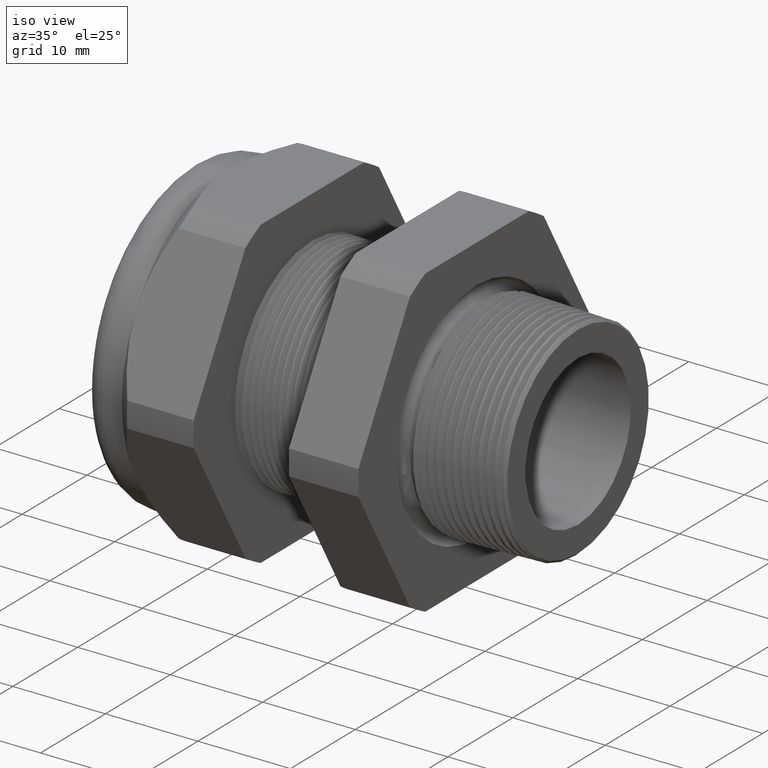
[diagram: clean part render]
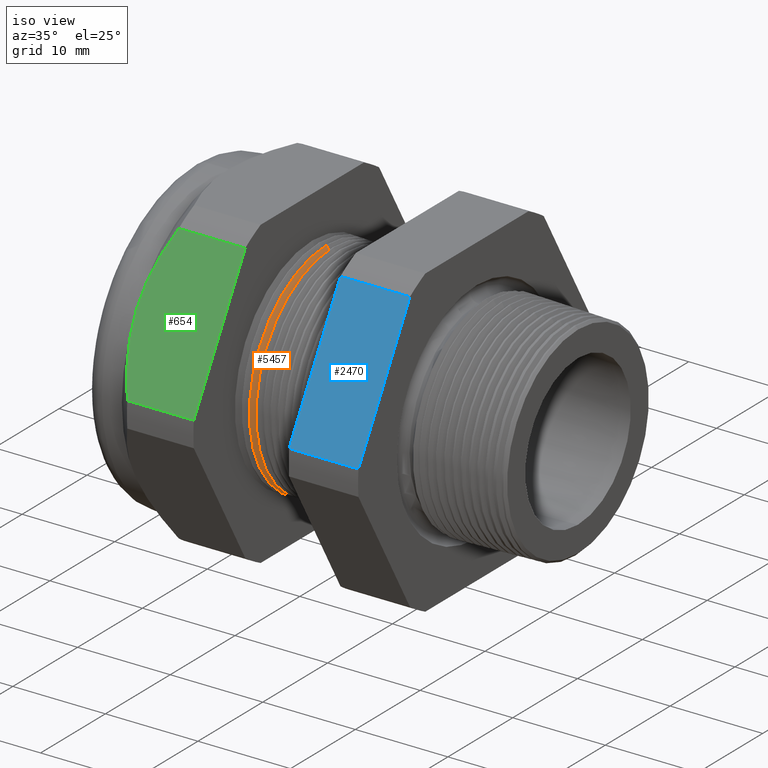
[diagram: same view with three faces highlighted in distinct colors, each labeled with its STEP entity id]
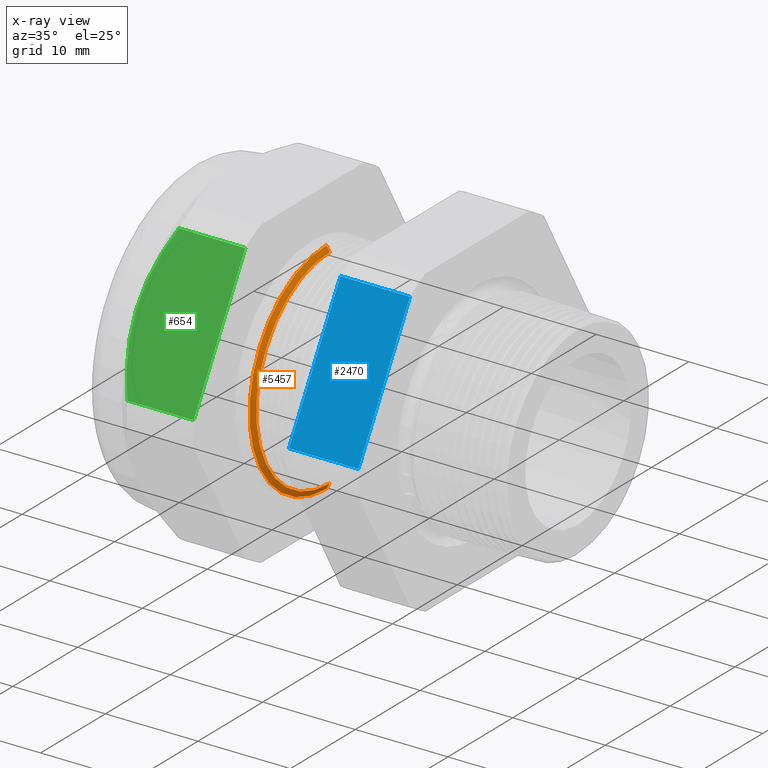
[diagram: x-ray of the same camera — body ghosted, the three highlighted faces saturated]
A machine part, iso view with three faces highlighted in distinct colors.
The next image is the same camera in x-ray (body ghosted, the three faces saturated) — at least one of them is partly hidden behind the body in this view.
Their STEP definitions:

[orange] entity #5457 — the highlighted conical surface has half-angle 61.5 deg.
#225 = VERTEX_POINT ( 'NONE', #3040 ) ;
#230 = VERTEX_POINT ( 'NONE', #3034 ) ;
#333 = EDGE_CURVE ( 'NONE', #225, #822, #3221, .T. ) ;
#522 = EDGE_CURVE ( 'NONE', #822, #819, #3592, .T. ) ;
#818 = EDGE_CURVE ( 'NONE', #230, #819, #4280, .T. ) ;
#819 = VERTEX_POINT ( 'NONE', #4275 ) ;
#822 = VERTEX_POINT ( 'NONE', #4269 ) ;
#1986 = CIRCLE ( 'NONE', #2049, 0.4446307351718083400 ) ;
#2046 = DIRECTION ( 'NONE',  ( 0.0000000000000000000, 0.0000000000000000000, -1.000000000000000000 ) ) ;
#2047 = DIRECTION ( 'NONE',  ( 1.000000000000000000, 0.0000000000000000000, 0.0000000000000000000 ) ) ;
#2048 = CARTESIAN_POINT ( 'NONE',  ( -0.9365405736958171100, 0.0000000000000000000, 0.0000000000000000000 ) ) ;
#2049 = AXIS2_PLACEMENT_3D ( 'NONE', #2048, #2047, #2046 ) ;
#2063 = DIRECTION ( 'NONE',  ( 0.0000000000000000000, 0.0000000000000000000, 1.000000000000000000 ) ) ;
#2064 = DIRECTION ( 'NONE',  ( -1.000000000000000000, 0.0000000000000000000, 0.0000000000000000000 ) ) ;
#2065 = CARTESIAN_POINT ( 'NONE',  ( -0.9503149606299211600, 0.0000000000000000000, 0.0000000000000000000 ) ) ;
#2066 = AXIS2_PLACEMENT_3D ( 'NONE', #2065, #2064, #2063 ) ;
#2068 = CONICAL_SURFACE ( 'NONE', #2066, 0.4699999999999999700, 1.073377489976499400 ) ;
#2069 = FACE_OUTER_BOUND ( 'NONE', #5446, .T. ) ;
#3034 = CARTESIAN_POINT ( 'NONE',  ( -0.9365405736958171100, 5.590738703805261400E-017, -0.4446307351718083400 ) ) ;
#3040 = CARTESIAN_POINT ( 'NONE',  ( -0.9365405736958171100, 0.0000000000000000000, 0.4446307351718083400 ) ) ;
#3218 = DIRECTION ( 'NONE',  ( -0.4771587602596201200, 0.0000000000000000000, 0.8788171126619589400 ) ) ;
#3219 = VECTOR ( 'NONE', #3218, 39.37007874015748100 ) ;
#3220 = CARTESIAN_POINT ( 'NONE',  ( -0.9503149606299211600, 0.0000000000000000000, 0.4699999999999999700 ) ) ;
#3221 = LINE ( 'NONE', #3220, #3219 ) ;
#3589 = DIRECTION ( 'NONE',  ( 0.0000000000000000000, 0.0000000000000000000, 1.000000000000000000 ) ) ;
#3590 = DIRECTION ( 'NONE',  ( 1.000000000000000000, 0.0000000000000000000, 0.0000000000000000000 ) ) ;
#3591 = AXIS2_PLACEMENT_3D ( 'NONE', #3597, #3590, #3589 ) ;
#3592 = CIRCLE ( 'NONE', #3591, 0.4684061841583611600 ) ;
#3597 = CARTESIAN_POINT ( 'NONE',  ( -0.9494495892345292700, 0.0000000000000000000, 0.0000000000000000000 ) ) ;
#4269 = CARTESIAN_POINT ( 'NONE',  ( -0.9494495892345292700, 0.0000000000000000000, 0.4684061841583611600 ) ) ;
#4275 = CARTESIAN_POINT ( 'NONE',  ( -0.9494495892345292700, 5.736719239259559800E-017, -0.4684061841583611600 ) ) ;
#4276 = DIRECTION ( 'NONE',  ( -0.4771587602596201200, 1.076240564057387000E-016, -0.8788171126619589400 ) ) ;
#4277 = VECTOR ( 'NONE', #4276, 39.37007874015748100 ) ;
#4279 = CARTESIAN_POINT ( 'NONE',  ( -0.9503149606299211600, 5.755839955992559700E-017, -0.4699999999999999700 ) ) ;
#4280 = LINE ( 'NONE', #4279, #4277 ) ;
#5424 = ORIENTED_EDGE ( 'NONE', *, *, #333, .T. ) ;
#5428 = ORIENTED_EDGE ( 'NONE', *, *, #5432, .F. ) ;
#5429 = ORIENTED_EDGE ( 'NONE', *, *, #522, .T. ) ;
#5432 = EDGE_CURVE ( 'NONE', #225, #230, #1986, .T. ) ;
#5446 = EDGE_LOOP ( 'NONE', ( #5459, #5428, #5424, #5429 ) ) ;
#5457 = ADVANCED_FACE ( 'NONE', ( #2069 ), #2068, .T. ) ;
#5459 = ORIENTED_EDGE ( 'NONE', *, *, #818, .F. ) ;

[blue] entity #2470 — the highlighted planar face has unit normal (0, -0.866, 0.5).
#259 = VERTEX_POINT ( 'NONE', #3101 ) ;
#261 = EDGE_CURVE ( 'NONE', #259, #262, #3100, .T. ) ;
#262 = VERTEX_POINT ( 'NONE', #3096 ) ;
#332 = VERTEX_POINT ( 'NONE', #3222 ) ;
#391 = EDGE_CURVE ( 'NONE', #332, #392, #3345, .T. ) ;
#392 = VERTEX_POINT ( 'NONE', #3341 ) ;
#1027 = EDGE_LOOP ( 'NONE', ( #2471, #2468, #2466, #2465 ) ) ;
#2465 = ORIENTED_EDGE ( 'NONE', *, *, #261, .F. ) ;
#2466 = ORIENTED_EDGE ( 'NONE', *, *, #2467, .F. ) ;
#2467 = EDGE_CURVE ( 'NONE', #262, #332, #4863, .T. ) ;
#2468 = ORIENTED_EDGE ( 'NONE', *, *, #391, .F. ) ;
#2470 = ADVANCED_FACE ( 'NONE', ( #4855 ), #4854, .T. ) ;
#2471 = ORIENTED_EDGE ( 'NONE', *, *, #2476, .T. ) ;
#2476 = EDGE_CURVE ( 'NONE', #259, #392, #4912, .T. ) ;
#3096 = CARTESIAN_POINT ( 'NONE',  ( -0.3100000000000000000, -0.7194909755756819800, 0.05380507471562025900 ) ) ;
#3097 = DIRECTION ( 'NONE',  ( 0.0000000000000000000, -0.4999999999999995600, -0.8660254037844388200 ) ) ;
#3098 = VECTOR ( 'NONE', #3097, 39.37007874015748900 ) ;
#3099 = CARTESIAN_POINT ( 'NONE',  ( -0.3100000000000000000, -0.2379165124598858200, 0.8879165124598844500 ) ) ;
#3100 = LINE ( 'NONE', #3099, #3098 ) ;
#3101 = CARTESIAN_POINT ( 'NONE',  ( -0.3100000000000000000, -0.4063420493440885700, 0.5961949252843791200 ) ) ;
#3222 = CARTESIAN_POINT ( 'NONE',  ( -0.6052755905511810800, -0.7194909755756819800, 0.05380507471562025900 ) ) ;
#3341 = CARTESIAN_POINT ( 'NONE',  ( -0.6052755905511810800, -0.4063420493440885700, 0.5961949252843791200 ) ) ;
#3342 = DIRECTION ( 'NONE',  ( 0.0000000000000000000, 0.4999999999999995600, 0.8660254037844388200 ) ) ;
#3343 = VECTOR ( 'NONE', #3342, 39.37007874015748900 ) ;
#3344 = CARTESIAN_POINT ( 'NONE',  ( -0.6052755905511809600, -0.2379165124598858200, 0.8879165124598844500 ) ) ;
#3345 = LINE ( 'NONE', #3344, #3343 ) ;
#4850 = DIRECTION ( 'NONE',  ( 0.0000000000000000000, -0.4999999999999995600, -0.8660254037844388200 ) ) ;
#4851 = DIRECTION ( 'NONE',  ( 0.0000000000000000000, -0.8660254037844389300, 0.4999999999999996100 ) ) ;
#4852 = CARTESIAN_POINT ( 'NONE',  ( 0.1200000000000000900, -0.7194909755756819800, 0.05380507471562023100 ) ) ;
#4853 = AXIS2_PLACEMENT_3D ( 'NONE', #4852, #4851, #4850 ) ;
#4854 = PLANE ( 'NONE',  #4853 ) ;
#4855 = FACE_OUTER_BOUND ( 'NONE', #1027, .T. ) ;
#4857 = DIRECTION ( 'NONE',  ( -1.000000000000000000, 0.0000000000000000000, 0.0000000000000000000 ) ) ;
#4858 = VECTOR ( 'NONE', #4857, 39.37007874015748100 ) ;
#4859 = CARTESIAN_POINT ( 'NONE',  ( 0.1200000000000000900, -0.7194909755756819800, 0.05380507471562025900 ) ) ;
#4863 = LINE ( 'NONE', #4859, #4858 ) ;
#4905 = DIRECTION ( 'NONE',  ( -1.000000000000000000, 0.0000000000000000000, 0.0000000000000000000 ) ) ;
#4906 = VECTOR ( 'NONE', #4905, 39.37007874015748100 ) ;
#4907 = CARTESIAN_POINT ( 'NONE',  ( 0.1200000000000000900, -0.4063420493440885700, 0.5961949252843791200 ) ) ;
#4912 = LINE ( 'NONE', #4907, #4906 ) ;

[green] entity #654 — the highlighted planar face has unit normal (0, -0.866, 0.5).
#654 = ADVANCED_FACE ( 'NONE', ( #3870 ), #3869, .T. ) ;
#655 = EDGE_LOOP ( 'NONE', ( #656, #660, #663, #665, #666 ) ) ;
#656 = ORIENTED_EDGE ( 'NONE', *, *, #657, .T. ) ;
#657 = EDGE_CURVE ( 'NONE', #658, #659, #3868, .T. ) ;
#658 = VERTEX_POINT ( 'NONE', #3924 ) ;
#659 = VERTEX_POINT ( 'NONE', #3923 ) ;
#660 = ORIENTED_EDGE ( 'NONE', *, *, #661, .T. ) ;
#661 = EDGE_CURVE ( 'NONE', #659, #662, #3922, .T. ) ;
#662 = VERTEX_POINT ( 'NONE', #3921 ) ;
#663 = ORIENTED_EDGE ( 'NONE', *, *, #664, .T. ) ;
#664 = EDGE_CURVE ( 'NONE', #662, #676, #3910, .T. ) ;
#665 = ORIENTED_EDGE ( 'NONE', *, *, #674, .F. ) ;
#666 = ORIENTED_EDGE ( 'NONE', *, *, #667, .F. ) ;
#667 = EDGE_CURVE ( 'NONE', #658, #675, #3908, .T. ) ;
#674 = EDGE_CURVE ( 'NONE', #675, #676, #3948, .T. ) ;
#675 = VERTEX_POINT ( 'NONE', #3939 ) ;
#676 = VERTEX_POINT ( 'NONE', #3938 ) ;
#3863 = DIRECTION ( 'NONE',  ( 0.0000000000000000000, -0.4999999999999995600, -0.8660254037844388200 ) ) ;
#3864 = DIRECTION ( 'NONE',  ( 0.0000000000000000000, -0.8660254037844389300, 0.4999999999999996100 ) ) ;
#3865 = CARTESIAN_POINT ( 'NONE',  ( 0.1200000000000000900, -0.7194909755756819800, 0.05380507471562023100 ) ) ;
#3866 = AXIS2_PLACEMENT_3D ( 'NONE', #3865, #3864, #3863 ) ;
#3868 = LINE ( 'NONE', #3928, #3927 ) ;
#3869 = PLANE ( 'NONE',  #3866 ) ;
#3870 = FACE_OUTER_BOUND ( 'NONE', #655, .T. ) ;
#3900 = CARTESIAN_POINT ( 'NONE',  ( -1.293145669291338600, -0.7194909755756819800, 0.05380507471562022400 ) ) ;
#3901 = CARTESIAN_POINT ( 'NONE',  ( -1.314794001287756400, -0.6945519286446000300, 0.09700077109259888600 ) ) ;
#3902 = CARTESIAN_POINT ( 'NONE',  ( -1.332917759362547400, -0.6687756690813084800, 0.1416465622853033100 ) ) ;
#3904 = CARTESIAN_POINT ( 'NONE',  ( -1.357805912917037400, -0.6165592345672921100, 0.2320880798536728600 ) ) ;
#3905 = CARTESIAN_POINT ( 'NONE',  ( -1.364645669291338000, -0.5900081318517965700, 0.2780759387538904700 ) ) ;
#3906 = CARTESIAN_POINT ( 'NONE',  ( -1.364645669291338500, -0.5629165124598853900, 0.3249999999999997300 ) ) ;
#3907 = CARTESIAN_POINT ( 'NONE',  ( -1.010314960629921100, -0.4454165124598855100, 0.5285159698893426800 ) ) ;
#3908 = LINE ( 'NONE', #3907, #3909 ) ;
#3909 = VECTOR ( 'NONE', #3961, 39.37007874015748900 ) ;
#3910 = B_SPLINE_CURVE_WITH_KNOTS ( 'NONE', 3,
 ( #3906, #3905, #3904, #3902, #3901, #3900 ),
 .UNSPECIFIED., .F., .F.,
 ( 4, 2, 4 ),
 ( 0.008163776578903783600, 0.01224274182034620200, 0.01632170706178862100 ),
 .UNSPECIFIED. ) ;
#3911 = CARTESIAN_POINT ( 'NONE',  ( -1.364645669291338500, -0.5629165124598853900, 0.3249999999999997300 ) ) ;
#3912 = CARTESIAN_POINT ( 'NONE',  ( -1.364645669291338500, -0.5561389602113052700, 0.3367390648454928200 ) ) ;
#3913 = CARTESIAN_POINT ( 'NONE',  ( -1.364216759191441800, -0.5492994181763347600, 0.3485854991505650300 ) ) ;
#3914 = CARTESIAN_POINT ( 'NONE',  ( -1.362513212994342900, -0.5357104722797962900, 0.3721222438646742400 ) ) ;
#3915 = CARTESIAN_POINT ( 'NONE',  ( -1.361244147852753300, -0.5289679975772971800, 0.3838005526181505500 ) ) ;
#3916 = CARTESIAN_POINT ( 'NONE',  ( -1.356260635251699500, -0.5088871528993771400, 0.4185815958592071800 ) ) ;
#3917 = CARTESIAN_POINT ( 'NONE',  ( -1.351369503974021000, -0.4956954080403314600, 0.4414303681955597500 ) ) ;
#3918 = CARTESIAN_POINT ( 'NONE',  ( -1.332638942225223800, -0.4566257321431000900, 0.5091010318848138100 ) ) ;
#3919 = CARTESIAN_POINT ( 'NONE',  ( -1.314767232512606300, -0.4312502584378782900, 0.5530526416083857400 ) ) ;
#3920 = CARTESIAN_POINT ( 'NONE',  ( -1.293145669291338600, -0.4063420493440885700, 0.5961949252843791200 ) ) ;
#3921 = CARTESIAN_POINT ( 'NONE',  ( -1.364645669291338500, -0.5629165124598853900, 0.3249999999999997300 ) ) ;
#3922 = B_SPLINE_CURVE_WITH_KNOTS ( 'NONE', 3,
 ( #3920, #3919, #3918, #3917, #3916, #3915, #3914, #3913, #3912, #3911 ),
 .UNSPECIFIED., .F., .F.,
 ( 4, 2, 2, 2, 4 ),
 ( 2.483249165337772200E-007, 0.004082012451910163300, 0.006122894515406976000, 0.007143335547155379000, 0.008163776578903783600 ),
 .UNSPECIFIED. ) ;
#3923 = CARTESIAN_POINT ( 'NONE',  ( -1.293145669291338600, -0.4063420493440885700, 0.5961949252843791200 ) ) ;
#3924 = CARTESIAN_POINT ( 'NONE',  ( -1.010314960629921100, -0.4063420493440885700, 0.5961949252843791200 ) ) ;
#3925 = DIRECTION ( 'NONE',  ( -1.000000000000000000, 0.0000000000000000000, 0.0000000000000000000 ) ) ;
#3927 = VECTOR ( 'NONE', #3925, 39.37007874015748100 ) ;
#3928 = CARTESIAN_POINT ( 'NONE',  ( 0.1200000000000000900, -0.4063420493440885700, 0.5961949252843791200 ) ) ;
#3938 = CARTESIAN_POINT ( 'NONE',  ( -1.293145669291338600, -0.7194909755756819800, 0.05380507471562022400 ) ) ;
#3939 = CARTESIAN_POINT ( 'NONE',  ( -1.010314960629921100, -0.7194909755756819800, 0.05380507471562025900 ) ) ;
#3940 = DIRECTION ( 'NONE',  ( -1.000000000000000000, 0.0000000000000000000, 0.0000000000000000000 ) ) ;
#3941 = VECTOR ( 'NONE', #3940, 39.37007874015748100 ) ;
#3942 = CARTESIAN_POINT ( 'NONE',  ( 0.1200000000000000900, -0.7194909755756819800, 0.05380507471562025900 ) ) ;
#3948 = LINE ( 'NONE', #3942, #3941 ) ;
#3961 = DIRECTION ( 'NONE',  ( 0.0000000000000000000, -0.4999999999999995600, -0.8660254037844388200 ) ) ;